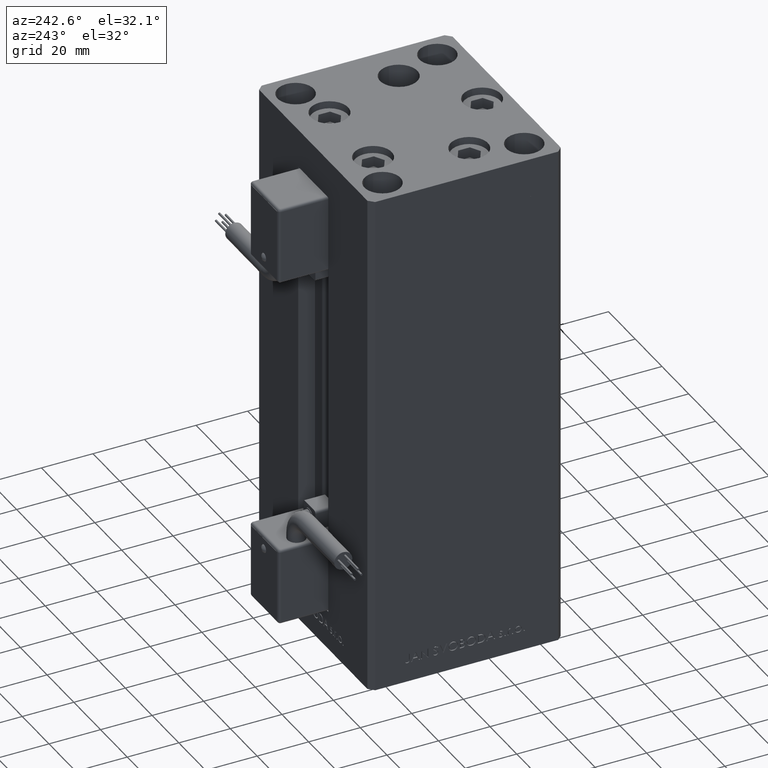
[diagram: clean part render]
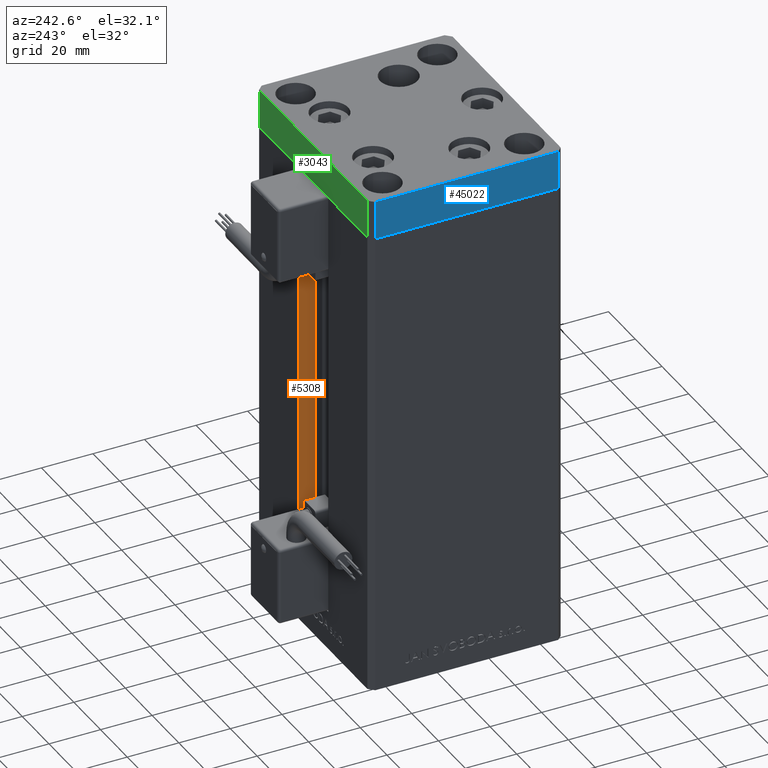
[diagram: same view with three faces highlighted in distinct colors, each labeled with its STEP entity id]
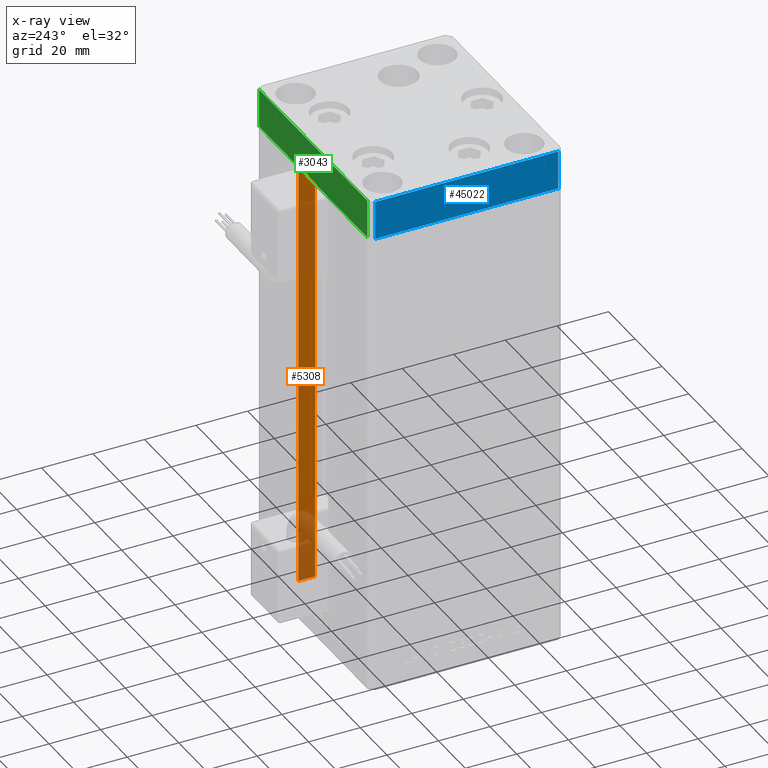
[diagram: x-ray of the same camera — body ghosted, the three highlighted faces saturated]
A machine part, auxiliary view with three faces highlighted in distinct colors.
The next image is the same camera in x-ray (body ghosted, the three faces saturated) — at least one of them is partly hidden behind the body in this view.
Their STEP definitions:

[orange] entity #5308 — the highlighted planar face has unit normal (1, 0, 0).
#438 = CARTESIAN_POINT ( 'NONE',  ( 11.25000000000000000, 30.99999999999999289, 168.5000000000000000 ) ) ;
#2548 = CARTESIAN_POINT ( 'NONE',  ( 11.25000000000000000, 30.99999999999999289, 0.000000000000000000 ) ) ;
#3069 = AXIS2_PLACEMENT_3D ( 'NONE', #50251, #38354, #22223 ) ;
#4253 = DIRECTION ( 'NONE',  ( 0.000000000000000000, 1.000000000000000000, 0.000000000000000000 ) ) ;
#5308 = ADVANCED_FACE ( 'NONE', ( #38095 ), #18506, .F. ) ;
#5626 = CARTESIAN_POINT ( 'NONE',  ( 11.24999999999999289, 37.50000000000000000, 168.5000000000000000 ) ) ;
#7740 = LINE ( 'NONE', #40271, #52149 ) ;
#11714 = EDGE_LOOP ( 'NONE', ( #37614, #38121, #43251, #50220 ) ) ;
#15648 = VERTEX_POINT ( 'NONE', #438 ) ;
#15882 = LINE ( 'NONE', #37037, #35208 ) ;
#17361 = VECTOR ( 'NONE', #51308, 1000.000000000000000 ) ;
#18506 = PLANE ( 'NONE',  #3069 ) ;
#18519 = CARTESIAN_POINT ( 'NONE',  ( 11.25000000000000000, 37.50000000000000000, 0.000000000000000000 ) ) ;
#21467 = EDGE_CURVE ( 'NONE', #23293, #15648, #31031, .T. ) ;
#22223 = DIRECTION ( 'NONE',  ( 0.000000000000000000, 0.000000000000000000, -1.000000000000000000 ) ) ;
#23293 = VERTEX_POINT ( 'NONE', #5626 ) ;
#31031 = LINE ( 'NONE', #42409, #36508 ) ;
#33480 = EDGE_CURVE ( 'NONE', #50995, #49826, #15882, .T. ) ;
#35208 = VECTOR ( 'NONE', #4253, 1000.000000000000000 ) ;
#36029 = DIRECTION ( 'NONE',  ( -0.000000000000000000, -0.000000000000000000, 1.000000000000000000 ) ) ;
#36508 = VECTOR ( 'NONE', #46633, 1000.000000000000000 ) ;
#37037 = CARTESIAN_POINT ( 'NONE',  ( 11.25000000000000000, 30.99999999999999289, 0.000000000000000000 ) ) ;
#37614 = ORIENTED_EDGE ( 'NONE', *, *, #43805, .F. ) ;
#38095 = FACE_OUTER_BOUND ( 'NONE', #11714, .T. ) ;
#38121 = ORIENTED_EDGE ( 'NONE', *, *, #33480, .F. ) ;
#38354 = DIRECTION ( 'NONE',  ( 1.000000000000000000, -0.000000000000000000, 0.000000000000000000 ) ) ;
#40271 = CARTESIAN_POINT ( 'NONE',  ( 11.25000000000000000, 30.99999999999999289, 0.000000000000000000 ) ) ;
#42409 = CARTESIAN_POINT ( 'NONE',  ( 11.25000000000000000, 0.000000000000000000, 168.5000000000000000 ) ) ;
#43251 = ORIENTED_EDGE ( 'NONE', *, *, #51479, .T. ) ;
#43805 = EDGE_CURVE ( 'NONE', #49826, #23293, #46825, .T. ) ;
#46633 = DIRECTION ( 'NONE',  ( -0.000000000000000000, -1.000000000000000000, 0.000000000000000000 ) ) ;
#46825 = LINE ( 'NONE', #47336, #17361 ) ;
#47336 = CARTESIAN_POINT ( 'NONE',  ( 11.25000000000000000, 37.50000000000000000, 0.000000000000000000 ) ) ;
#49826 = VERTEX_POINT ( 'NONE', #18519 ) ;
#50220 = ORIENTED_EDGE ( 'NONE', *, *, #21467, .F. ) ;
#50251 = CARTESIAN_POINT ( 'NONE',  ( 11.25000000000000000, 30.99999999999999289, 0.000000000000000000 ) ) ;
#50995 = VERTEX_POINT ( 'NONE', #2548 ) ;
#51308 = DIRECTION ( 'NONE',  ( -0.000000000000000000, -0.000000000000000000, 1.000000000000000000 ) ) ;
#51479 = EDGE_CURVE ( 'NONE', #50995, #15648, #7740, .T. ) ;
#52149 = VECTOR ( 'NONE', #36029, 1000.000000000000000 ) ;

[blue] entity #45022 — the highlighted planar face has unit normal (-1, -0, 0).
#153 = ORIENTED_EDGE ( 'NONE', *, *, #6915, .F. ) ;
#341 = VECTOR ( 'NONE', #28359, 1000.000000000000000 ) ;
#1803 = CARTESIAN_POINT ( 'NONE',  ( -42.50000000000000000, -35.50000000000000711, -15.00000000000000000 ) ) ;
#3423 = ORIENTED_EDGE ( 'NONE', *, *, #50929, .F. ) ;
#3883 = VECTOR ( 'NONE', #43303, 1000.000000000000000 ) ;
#3990 = VECTOR ( 'NONE', #16775, 1000.000000000000000 ) ;
#6915 = EDGE_CURVE ( 'NONE', #49432, #13285, #20741, .T. ) ;
#6928 = CARTESIAN_POINT ( 'NONE',  ( -42.50000000000000711, 35.49999999999997158, -15.00000000000000000 ) ) ;
#9815 = AXIS2_PLACEMENT_3D ( 'NONE', #6928, #15117, #46350 ) ;
#13146 = ORIENTED_EDGE ( 'NONE', *, *, #44285, .T. ) ;
#13285 = VERTEX_POINT ( 'NONE', #30144 ) ;
#15117 = DIRECTION ( 'NONE',  ( -1.000000000000000000, -9.773090005503140331E-17, 0.000000000000000000 ) ) ;
#16360 = ORIENTED_EDGE ( 'NONE', *, *, #40497, .T. ) ;
#16775 = DIRECTION ( 'NONE',  ( 0.000000000000000000, 0.000000000000000000, 1.000000000000000000 ) ) ;
#20142 = CARTESIAN_POINT ( 'NONE',  ( -42.50000000000000000, -35.50000000000000711, 0.000000000000000000 ) ) ;
#20741 = LINE ( 'NONE', #36875, #3990 ) ;
#21861 = DIRECTION ( 'NONE',  ( 9.773090005503140331E-17, -1.000000000000000000, 0.000000000000000000 ) ) ;
#22560 = PLANE ( 'NONE',  #9815 ) ;
#26944 = CARTESIAN_POINT ( 'NONE',  ( -42.50000000000000711, 35.49999999999997158, -15.00000000000000000 ) ) ;
#28359 = DIRECTION ( 'NONE',  ( 0.000000000000000000, 0.000000000000000000, 1.000000000000000000 ) ) ;
#29538 = LINE ( 'NONE', #37988, #40318 ) ;
#30144 = CARTESIAN_POINT ( 'NONE',  ( -42.50000000000000711, 35.49999999999997158, 0.000000000000000000 ) ) ;
#36875 = CARTESIAN_POINT ( 'NONE',  ( -42.50000000000000711, 35.49999999999997158, -15.00000000000000000 ) ) ;
#37988 = CARTESIAN_POINT ( 'NONE',  ( -42.50000000000000711, 35.49999999999997158, 0.000000000000000000 ) ) ;
#38836 = VERTEX_POINT ( 'NONE', #1803 ) ;
#39555 = VERTEX_POINT ( 'NONE', #20142 ) ;
#40318 = VECTOR ( 'NONE', #21861, 1000.000000000000000 ) ;
#40497 = EDGE_CURVE ( 'NONE', #38836, #39555, #51356, .T. ) ;
#43303 = DIRECTION ( 'NONE',  ( 9.773090005503140331E-17, -1.000000000000000000, 0.000000000000000000 ) ) ;
#44285 = EDGE_CURVE ( 'NONE', #49432, #38836, #47275, .T. ) ;
#45022 = ADVANCED_FACE ( 'NONE', ( #50830 ), #22560, .T. ) ;
#46350 = DIRECTION ( 'NONE',  ( 9.773090005503140331E-17, -1.000000000000000000, 0.000000000000000000 ) ) ;
#47275 = LINE ( 'NONE', #26944, #3883 ) ;
#47384 = CARTESIAN_POINT ( 'NONE',  ( -42.50000000000000000, -35.50000000000000711, -15.00000000000000000 ) ) ;
#47536 = CARTESIAN_POINT ( 'NONE',  ( -42.50000000000000711, 35.49999999999997158, -15.00000000000000000 ) ) ;
#47854 = EDGE_LOOP ( 'NONE', ( #3423, #153, #13146, #16360 ) ) ;
#49432 = VERTEX_POINT ( 'NONE', #47536 ) ;
#50830 = FACE_OUTER_BOUND ( 'NONE', #47854, .T. ) ;
#50929 = EDGE_CURVE ( 'NONE', #13285, #39555, #29538, .T. ) ;
#51356 = LINE ( 'NONE', #47384, #341 ) ;

[green] entity #3043 — the highlighted planar face has unit normal (-0, 1, 0).
#910 = EDGE_CURVE ( 'NONE', #4373, #19240, #49185, .T. ) ;
#1619 = LINE ( 'NONE', #33860, #30366 ) ;
#2780 = CARTESIAN_POINT ( 'NONE',  ( -40.50000000000000711, 37.49999999999997868, 0.000000000000000000 ) ) ;
#3043 = ADVANCED_FACE ( 'NONE', ( #39488 ), #43188, .T. ) ;
#4373 = VERTEX_POINT ( 'NONE', #14775 ) ;
#7187 = AXIS2_PLACEMENT_3D ( 'NONE', #26560, #18604, #47407 ) ;
#8957 = EDGE_CURVE ( 'NONE', #30650, #19240, #1619, .T. ) ;
#10541 = ORIENTED_EDGE ( 'NONE', *, *, #21929, .T. ) ;
#11870 = LINE ( 'NONE', #14793, #34910 ) ;
#13222 = CARTESIAN_POINT ( 'NONE',  ( 40.49999999999991473, 37.50000000000000711, -15.00000000000000000 ) ) ;
#13733 = VECTOR ( 'NONE', #31738, 1000.000000000000000 ) ;
#14775 = CARTESIAN_POINT ( 'NONE',  ( -40.50000000000000711, 37.49999999999997868, -15.00000000000000000 ) ) ;
#14793 = CARTESIAN_POINT ( 'NONE',  ( 40.49999999999991473, 37.50000000000000711, -15.00000000000000000 ) ) ;
#15606 = LINE ( 'NONE', #44158, #13733 ) ;
#18604 = DIRECTION ( 'NONE',  ( -3.426614273534436165E-16, 1.000000000000000000, 0.000000000000000000 ) ) ;
#19240 = VERTEX_POINT ( 'NONE', #2780 ) ;
#21929 = EDGE_CURVE ( 'NONE', #33628, #4373, #15606, .T. ) ;
#21951 = DIRECTION ( 'NONE',  ( 0.000000000000000000, 0.000000000000000000, 1.000000000000000000 ) ) ;
#25155 = CARTESIAN_POINT ( 'NONE',  ( -40.50000000000000711, 37.49999999999997868, -15.00000000000000000 ) ) ;
#25278 = CARTESIAN_POINT ( 'NONE',  ( 40.49999999999991473, 37.50000000000000711, 0.000000000000000000 ) ) ;
#26560 = CARTESIAN_POINT ( 'NONE',  ( 40.49999999999991473, 37.50000000000000711, -15.00000000000000000 ) ) ;
#29532 = ORIENTED_EDGE ( 'NONE', *, *, #910, .T. ) ;
#29757 = EDGE_LOOP ( 'NONE', ( #34025, #45467, #10541, #29532 ) ) ;
#30366 = VECTOR ( 'NONE', #49985, 1000.000000000000000 ) ;
#30650 = VERTEX_POINT ( 'NONE', #25278 ) ;
#31738 = DIRECTION ( 'NONE',  ( -1.000000000000000000, -3.426614273534436165E-16, 0.000000000000000000 ) ) ;
#33628 = VERTEX_POINT ( 'NONE', #13222 ) ;
#33860 = CARTESIAN_POINT ( 'NONE',  ( 40.49999999999991473, 37.50000000000000711, 0.000000000000000000 ) ) ;
#34025 = ORIENTED_EDGE ( 'NONE', *, *, #8957, .F. ) ;
#34910 = VECTOR ( 'NONE', #43595, 1000.000000000000000 ) ;
#35347 = EDGE_CURVE ( 'NONE', #33628, #30650, #11870, .T. ) ;
#39488 = FACE_OUTER_BOUND ( 'NONE', #29757, .T. ) ;
#43188 = PLANE ( 'NONE',  #7187 ) ;
#43595 = DIRECTION ( 'NONE',  ( 0.000000000000000000, 0.000000000000000000, 1.000000000000000000 ) ) ;
#44158 = CARTESIAN_POINT ( 'NONE',  ( 40.49999999999991473, 37.50000000000000711, -15.00000000000000000 ) ) ;
#45467 = ORIENTED_EDGE ( 'NONE', *, *, #35347, .F. ) ;
#47407 = DIRECTION ( 'NONE',  ( -1.000000000000000000, -3.426614273534436165E-16, 0.000000000000000000 ) ) ;
#47646 = VECTOR ( 'NONE', #21951, 1000.000000000000000 ) ;
#49185 = LINE ( 'NONE', #25155, #47646 ) ;
#49985 = DIRECTION ( 'NONE',  ( -1.000000000000000000, -3.426614273534436165E-16, 0.000000000000000000 ) ) ;